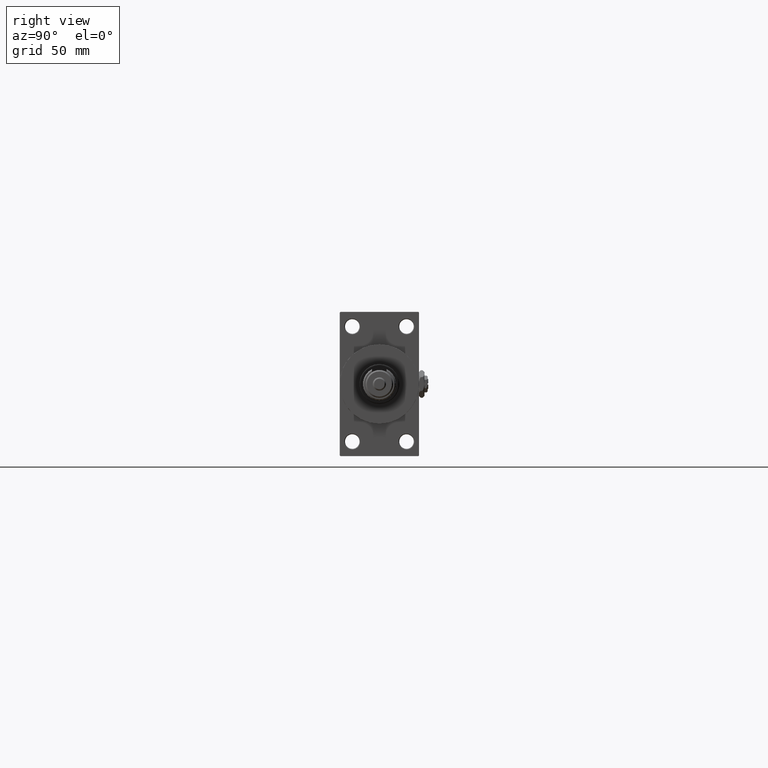
[diagram: clean part render]
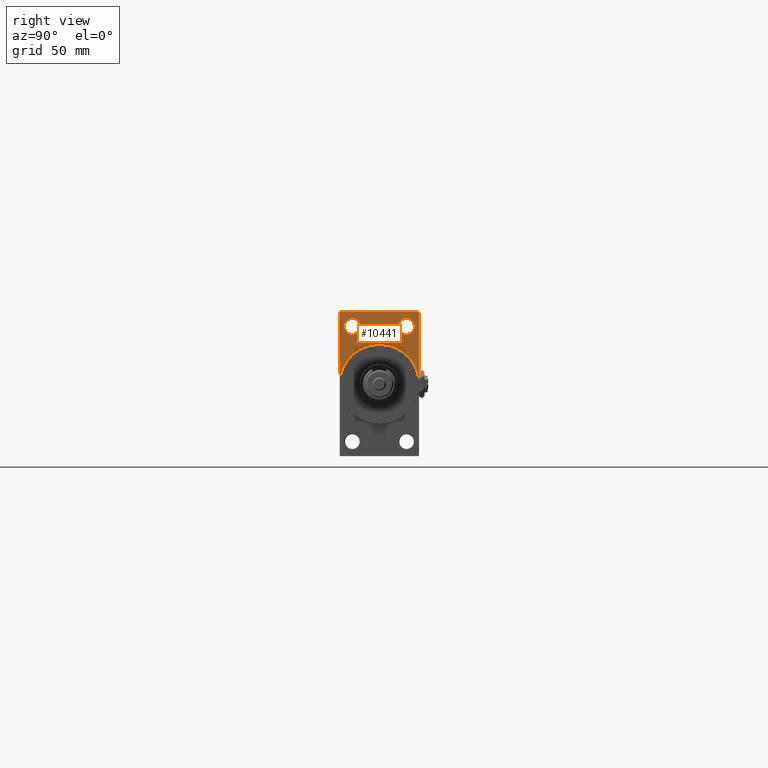
[diagram: same view with one face highlighted and labeled with its STEP entity id]
A machine part, right view. The second image highlights one B-rep face of the part: STEP entity #10441.
In plain terms, the highlighted planar face has unit normal (-1, 0, 0).
Its self-contained STEP definition (entity closure, byte-faithful):
#33 = CARTESIAN_POINT ( 'NONE',  ( 437.9999999999999432, 0.000000000000000000, 0.000000000000000000 ) ) ;
#103 = EDGE_LOOP ( 'NONE', ( #17216, #37811, #27950, #34239, #8872, #27354, #32544 ) ) ;
#810 = CIRCLE ( 'NONE', #33597, 30.00000000000000000 ) ;
#1940 = EDGE_CURVE ( 'NONE', #15743, #4307, #34647, .T. ) ;
#2787 = ORIENTED_EDGE ( 'NONE', *, *, #47771, .T. ) ;
#2840 = DIRECTION ( 'NONE',  ( -0.000000000000000000, -0.7071067811865058284, -0.7071067811865892061 ) ) ;
#3826 = AXIS2_PLACEMENT_3D ( 'NONE', #36706, #44610, #17209 ) ;
#4307 = VERTEX_POINT ( 'NONE', #43071 ) ;
#4374 = AXIS2_PLACEMENT_3D ( 'NONE', #33, #7412, #35609 ) ;
#4784 = DIRECTION ( 'NONE',  ( 0.000000000000000000, -1.000000000000000000, 1.156482317317871478E-16 ) ) ;
#5497 = CIRCLE ( 'NONE', #40817, 6.000000000000060396 ) ;
#5807 = CARTESIAN_POINT ( 'NONE',  ( 437.9999999999999432, -30.00000000000000000, 54.50000000000000000 ) ) ;
#6030 = VECTOR ( 'NONE', #9753, 1000.000000000000000 ) ;
#6089 = CARTESIAN_POINT ( 'NONE',  ( 437.9999999999999432, -30.00000000000000000, 54.00000000000000000 ) ) ;
#6644 = ORIENTED_EDGE ( 'NONE', *, *, #7604, .T. ) ;
#7412 = DIRECTION ( 'NONE',  ( 1.000000000000000000, 0.000000000000000000, 0.000000000000000000 ) ) ;
#7604 = EDGE_CURVE ( 'NONE', #11923, #16278, #20592, .T. ) ;
#7630 = VERTEX_POINT ( 'NONE', #49166 ) ;
#8860 = DIRECTION ( 'NONE',  ( -1.000000000000000000, 0.000000000000000000, -0.000000000000000000 ) ) ;
#8872 = ORIENTED_EDGE ( 'NONE', *, *, #9190, .F. ) ;
#9190 = EDGE_CURVE ( 'NONE', #16456, #15743, #810, .T. ) ;
#9624 = DIRECTION ( 'NONE',  ( 0.000000000000000000, 0.000000000000000000, 1.000000000000000000 ) ) ;
#9753 = DIRECTION ( 'NONE',  ( 0.000000000000000000, 0.000000000000000000, -1.000000000000000000 ) ) ;
#10215 = VERTEX_POINT ( 'NONE', #13826 ) ;
#10441 = ADVANCED_FACE ( 'NONE', ( #45923, #29842, #45390 ), #34048, .F. ) ;
#11433 = EDGE_LOOP ( 'NONE', ( #6644, #2787 ) ) ;
#11756 = EDGE_CURVE ( 'NONE', #21281, #10215, #5497, .T. ) ;
#11792 = ORIENTED_EDGE ( 'NONE', *, *, #11756, .T. ) ;
#11923 = VERTEX_POINT ( 'NONE', #41785 ) ;
#12774 = EDGE_LOOP ( 'NONE', ( #11792, #42101 ) ) ;
#13826 = CARTESIAN_POINT ( 'NONE',  ( 437.9999999999999432, 20.50000000000000000, 49.50000000000005684 ) ) ;
#14549 = VECTOR ( 'NONE', #2840, 1000.000000000000000 ) ;
#14573 = VECTOR ( 'NONE', #49550, 1000.000000000000114 ) ;
#15004 = DIRECTION ( 'NONE',  ( -1.000000000000000000, 0.000000000000000000, -0.000000000000000000 ) ) ;
#15743 = VERTEX_POINT ( 'NONE', #47038 ) ;
#16278 = VERTEX_POINT ( 'NONE', #31277 ) ;
#16456 = VERTEX_POINT ( 'NONE', #34646 ) ;
#16484 = AXIS2_PLACEMENT_3D ( 'NONE', #30279, #15004, #47414 ) ;
#16516 = DIRECTION ( 'NONE',  ( 0.000000000000000000, 0.000000000000000000, 1.000000000000000000 ) ) ;
#17209 = DIRECTION ( 'NONE',  ( 0.000000000000000000, 0.000000000000000000, 1.000000000000000000 ) ) ;
#17216 = ORIENTED_EDGE ( 'NONE', *, *, #51197, .T. ) ;
#17239 = AXIS2_PLACEMENT_3D ( 'NONE', #33599, #49687, #9624 ) ;
#17409 = LINE ( 'NONE', #17667, #14573 ) ;
#17667 = CARTESIAN_POINT ( 'NONE',  ( 437.9999999999999432, 29.50000000000004974, 54.49999999999999289 ) ) ;
#17709 = DIRECTION ( 'NONE',  ( 0.000000000000000000, 0.000000000000000000, -1.000000000000000000 ) ) ;
#17722 = DIRECTION ( 'NONE',  ( -1.000000000000000000, 0.000000000000000000, -0.000000000000000000 ) ) ;
#20592 = CIRCLE ( 'NONE', #17239, 6.000000000000060396 ) ;
#21281 = VERTEX_POINT ( 'NONE', #52016 ) ;
#22181 = LINE ( 'NONE', #46169, #24747 ) ;
#22830 = DIRECTION ( 'NONE',  ( 1.000000000000000000, 0.000000000000000000, 0.000000000000000000 ) ) ;
#23254 = VERTEX_POINT ( 'NONE', #50550 ) ;
#24299 = CARTESIAN_POINT ( 'NONE',  ( 437.9999999999999432, 29.99999999999999645, 54.49999999999999289 ) ) ;
#24747 = VECTOR ( 'NONE', #17709, 1000.000000000000000 ) ;
#26550 = CARTESIAN_POINT ( 'NONE',  ( 437.9999999999999432, -30.00000000000000000, 54.00000000000000000 ) ) ;
#27354 = ORIENTED_EDGE ( 'NONE', *, *, #34241, .F. ) ;
#27545 = VECTOR ( 'NONE', #4784, 1000.000000000000000 ) ;
#27563 = CARTESIAN_POINT ( 'NONE',  ( 437.9999999999999432, 0.000000000000000000, 0.000000000000000000 ) ) ;
#27950 = ORIENTED_EDGE ( 'NONE', *, *, #36870, .T. ) ;
#29842 = FACE_BOUND ( 'NONE', #12774, .T. ) ;
#30279 = CARTESIAN_POINT ( 'NONE',  ( 437.9999999999999432, 20.50000000000000000, 43.50000000000000000 ) ) ;
#30361 = VERTEX_POINT ( 'NONE', #45208 ) ;
#30791 = EDGE_CURVE ( 'NONE', #23254, #51988, #50276, .T. ) ;
#31277 = CARTESIAN_POINT ( 'NONE',  ( 437.9999999999999432, -20.50000000000000000, 49.50000000000005684 ) ) ;
#32493 = AXIS2_PLACEMENT_3D ( 'NONE', #37490, #17722, #49866 ) ;
#32544 = ORIENTED_EDGE ( 'NONE', *, *, #42619, .T. ) ;
#33597 = AXIS2_PLACEMENT_3D ( 'NONE', #27563, #22830, #34951 ) ;
#33599 = CARTESIAN_POINT ( 'NONE',  ( 437.9999999999999432, -20.50000000000000000, 43.50000000000000000 ) ) ;
#34048 = PLANE ( 'NONE',  #32493 ) ;
#34239 = ORIENTED_EDGE ( 'NONE', *, *, #1940, .F. ) ;
#34241 = EDGE_CURVE ( 'NONE', #7630, #16456, #22181, .T. ) ;
#34646 = CARTESIAN_POINT ( 'NONE',  ( 437.9999999999999432, 30.00000000000000000, 0.000000000000000000 ) ) ;
#34647 = CIRCLE ( 'NONE', #4374, 30.00000000000000000 ) ;
#34750 = EDGE_CURVE ( 'NONE', #10215, #21281, #34994, .T. ) ;
#34951 = DIRECTION ( 'NONE',  ( 0.000000000000000000, 0.000000000000000000, -1.000000000000000000 ) ) ;
#34994 = CIRCLE ( 'NONE', #16484, 6.000000000000060396 ) ;
#35609 = DIRECTION ( 'NONE',  ( 0.000000000000000000, 0.000000000000000000, -1.000000000000000000 ) ) ;
#36706 = CARTESIAN_POINT ( 'NONE',  ( 437.9999999999999432, -20.50000000000000000, 43.50000000000000000 ) ) ;
#36870 = EDGE_CURVE ( 'NONE', #51988, #4307, #45868, .T. ) ;
#37058 = CARTESIAN_POINT ( 'NONE',  ( 437.9999999999999432, 20.50000000000000000, 43.50000000000000000 ) ) ;
#37490 = CARTESIAN_POINT ( 'NONE',  ( 437.9999999999999432, 0.000000000000000000, 0.000000000000000000 ) ) ;
#37811 = ORIENTED_EDGE ( 'NONE', *, *, #30791, .T. ) ;
#40817 = AXIS2_PLACEMENT_3D ( 'NONE', #37058, #8860, #16516 ) ;
#40880 = LINE ( 'NONE', #24299, #27545 ) ;
#41785 = CARTESIAN_POINT ( 'NONE',  ( 437.9999999999999432, -20.50000000000000000, 37.49999999999993605 ) ) ;
#42101 = ORIENTED_EDGE ( 'NONE', *, *, #34750, .T. ) ;
#42619 = EDGE_CURVE ( 'NONE', #7630, #30361, #17409, .T. ) ;
#43071 = CARTESIAN_POINT ( 'NONE',  ( 437.9999999999999432, -30.00000000000000000, 0.000000000000000000 ) ) ;
#44610 = DIRECTION ( 'NONE',  ( -1.000000000000000000, 0.000000000000000000, -0.000000000000000000 ) ) ;
#45208 = CARTESIAN_POINT ( 'NONE',  ( 437.9999999999999432, 29.50000000000004974, 54.49999999999999289 ) ) ;
#45390 = FACE_OUTER_BOUND ( 'NONE', #103, .T. ) ;
#45868 = LINE ( 'NONE', #5807, #6030 ) ;
#45923 = FACE_BOUND ( 'NONE', #11433, .T. ) ;
#46169 = CARTESIAN_POINT ( 'NONE',  ( 437.9999999999999432, 29.99999999999999645, 54.49999999999999289 ) ) ;
#47038 = CARTESIAN_POINT ( 'NONE',  ( 437.9999999999999432, 0.000000000000000000, 30.00000000000000000 ) ) ;
#47414 = DIRECTION ( 'NONE',  ( 0.000000000000000000, 0.000000000000000000, 1.000000000000000000 ) ) ;
#47771 = EDGE_CURVE ( 'NONE', #16278, #11923, #51780, .T. ) ;
#49166 = CARTESIAN_POINT ( 'NONE',  ( 437.9999999999999432, 29.99999999999999645, 54.00000000000004974 ) ) ;
#49550 = DIRECTION ( 'NONE',  ( 0.000000000000000000, -0.7071067811865474617, 0.7071067811865474617 ) ) ;
#49687 = DIRECTION ( 'NONE',  ( -1.000000000000000000, 0.000000000000000000, -0.000000000000000000 ) ) ;
#49866 = DIRECTION ( 'NONE',  ( -0.000000000000000000, 0.000000000000000000, 1.000000000000000000 ) ) ;
#50276 = LINE ( 'NONE', #26550, #14549 ) ;
#50550 = CARTESIAN_POINT ( 'NONE',  ( 437.9999999999999432, -29.50000000000005684, 54.50000000000000000 ) ) ;
#51197 = EDGE_CURVE ( 'NONE', #30361, #23254, #40880, .T. ) ;
#51780 = CIRCLE ( 'NONE', #3826, 6.000000000000060396 ) ;
#51988 = VERTEX_POINT ( 'NONE', #6089 ) ;
#52016 = CARTESIAN_POINT ( 'NONE',  ( 437.9999999999999432, 20.50000000000000000, 37.49999999999993605 ) ) ;